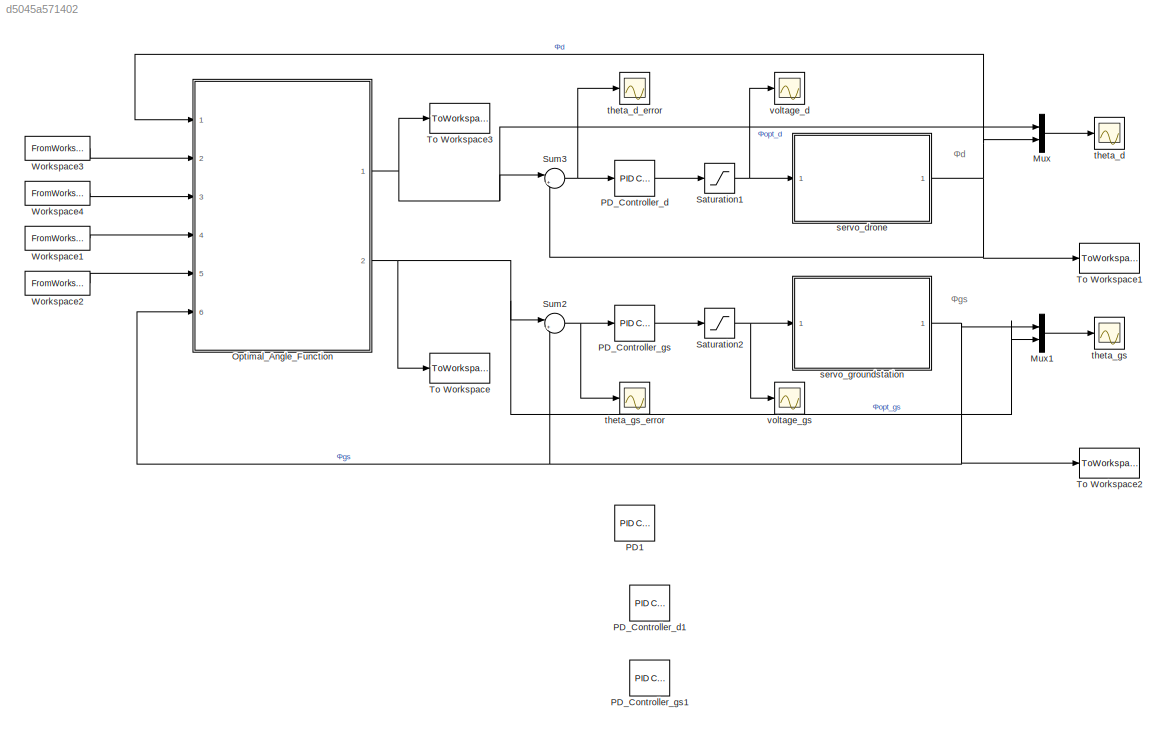
MODEL slx_d5045a571402
KIND model
CONFIG AbsTol = auto
CONFIG FixedStep = auto
CONFIG MaxStep = auto
CONFIG MinStep = auto
CONFIG RelTol = 1e-3
CONFIG SampleTimeConstraint = Unconstrained
CONFIG Solver = VariableStepAuto
CONFIG SolverMode = Auto
CONFIG SolverName = VariableStepAuto
CONFIG StartTime = 0.0
CONFIG StopTime = 100
BLOCK [Mux] Mux
  DisplayOption = bar
  Inputs = 2
  Ports = [2, 1]
BLOCK [Mux] Mux1
  DisplayOption = bar
  Inputs = 2
  Ports = [2, 1]
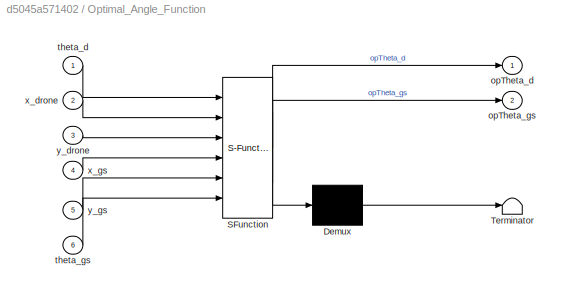
BLOCK [SubSystem] Optimal_Angle_Function 
  ErrorFcn = Stateflow.Translate.translate
  PermitHierarchicalResolution = ExplicitOnly
  Ports = [6, 2]
  RequestExecContextInheritance = off
  SFBlockType = MATLAB Function
  TreatAsAtomicUnit = on
  Variant = off
BLOCK [Demux] Optimal_Angle_Function / Demux 
  Outputs = 1
  Ports = [1, 1]
BLOCK [S-Function] Optimal_Angle_Function / SFunction 
  EnableBusSupport = on
  FunctionName = sf_sfun
  PortCounts = [6 3]
  Ports = [6, 3]
  SFunctionDeploymentMode = off
  Tag = Stateflow S-Function dronesmodel 2
BLOCK [Terminator] Optimal_Angle_Function / Terminator 
BLOCK [Outport] Optimal_Angle_Function /opTheta_d
  IconDisplay = Port number
BLOCK [Outport] Optimal_Angle_Function /opTheta_gs
  IconDisplay = Port number
  Port = 2
BLOCK [Inport] Optimal_Angle_Function /theta_d
  IconDisplay = Port number
BLOCK [Inport] Optimal_Angle_Function /theta_gs
  IconDisplay = Port number
  Port = 6
BLOCK [Inport] Optimal_Angle_Function /x_drone
  IconDisplay = Port number
  Port = 2
BLOCK [Inport] Optimal_Angle_Function /x_gs
  IconDisplay = Port number
  Port = 4
BLOCK [Inport] Optimal_Angle_Function /y_drone
  IconDisplay = Port number
  Port = 3
BLOCK [Inport] Optimal_Angle_Function /y_gs
  IconDisplay = Port number
  Port = 5
BLOCK [Reference] PD1  REF=simulink/Continuous/PID Controller
  Ports = [1, 1]
  SourceBlock = simulink/Continuous/PID Controller
  SourceType = PID 1dof
BLOCK [Reference] PD_Controller_d  REF=simulink/Continuous/PID Controller
  Ports = [1, 1]
  SourceBlock = simulink/Continuous/PID Controller
  SourceType = PID 1dof
BLOCK [Reference] PD_Controller_d1  REF=simulink/Continuous/PID Controller
  Ports = [1, 1]
  SourceBlock = simulink/Continuous/PID Controller
  SourceType = PID 1dof
BLOCK [Reference] PD_Controller_gs  REF=simulink/Continuous/PID Controller
  Ports = [1, 1]
  SourceBlock = simulink/Continuous/PID Controller
  SourceType = PID 1dof
BLOCK [Reference] PD_Controller_gs1  REF=simulink/Continuous/PID Controller
  Ports = [1, 1]
  SourceBlock = simulink/Continuous/PID Controller
  SourceType = PID 1dof
BLOCK [Saturate] Saturation1
  InputPortMap = u0
  LowerLimit = -10
  Ports = [1, 1]
  UpperLimit = 10
BLOCK [Saturate] Saturation2
  InputPortMap = u0
  LowerLimit = -10
  Ports = [1, 1]
  UpperLimit = 10
BLOCK [Sum] Sum2
  IconShape = round
  InputSameDT = off
  Inputs = |+-
  OutDataTypeStr = Inherit: Inherit via internal rule
  Ports = [2, 1]
  SaturateOnIntegerOverflow = off
BLOCK [Sum] Sum3
  IconShape = round
  InputSameDT = off
  Inputs = |+-
  OutDataTypeStr = Inherit: Inherit via internal rule
  Ports = [2, 1]
  SaturateOnIntegerOverflow = off
BLOCK [ToWorkspace] To Workspace
  FixptAsFi = on
  MaxDataPoints = inf
  Ports = [1]
  SampleTime = -1
  Save2DSignal = 3-D array (concatenate along third dimension)
  SaveFormat = Timeseries
  VariableName = op_theta_gs
BLOCK [ToWorkspace] To Workspace1
  FixptAsFi = on
  MaxDataPoints = inf
  Ports = [1]
  SampleTime = -1
  Save2DSignal = 3-D array (concatenate along third dimension)
  SaveFormat = Timeseries
  VariableName = theta_d_vec
BLOCK [ToWorkspace] To Workspace2
  FixptAsFi = on
  MaxDataPoints = inf
  Ports = [1]
  SampleTime = -1
  Save2DSignal = 3-D array (concatenate along third dimension)
  SaveFormat = Timeseries
  VariableName = theta_gs_vec
BLOCK [ToWorkspace] To Workspace3
  FixptAsFi = on
  MaxDataPoints = inf
  Ports = [1]
  SampleTime = -1
  Save2DSignal = 3-D array (concatenate along third dimension)
  SaveFormat = Timeseries
  VariableName = op_theta_d
BLOCK [FromWorkspace] Workspace1
  SampleTime = 1
  VariableName = [time' x_gs']
  ZeroCross = on
BLOCK [FromWorkspace] Workspace2
  SampleTime = 1
  VariableName = [time' y_gs']
  ZeroCross = on
BLOCK [FromWorkspace] Workspace3
  SampleTime = 1
  VariableName = [time' x_drone']
  ZeroCross = on
BLOCK [FromWorkspace] Workspace4
  OutDataTypeStr = double
  SampleTime = 1
  VariableName = [time' y_drone']
  ZeroCross = on
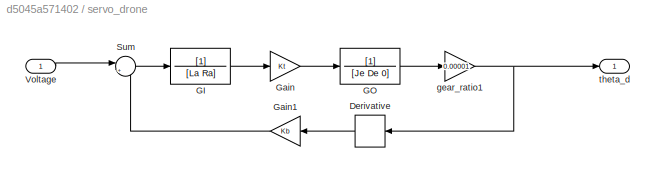
BLOCK [SubSystem] servo_drone
  Ports = [1, 1]
  RequestExecContextInheritance = off
  Variant = off
BLOCK [Derivative] servo_drone/Derivative
BLOCK [TransferFcn] servo_drone/GI
  Denominator = [La Ra]
BLOCK [TransferFcn] servo_drone/GO
  Denominator = [Je De 0]
BLOCK [Gain] servo_drone/Gain
  Gain = Kt
  OutDataTypeStr = Inherit: Inherit via internal rule
  ParamDataTypeStr = Inherit: Inherit via internal rule
  SaturateOnIntegerOverflow = off
BLOCK [Gain] servo_drone/Gain1
  Gain = Kb
  OutDataTypeStr = Inherit: Inherit via internal rule
  ParamDataTypeStr = Inherit: Inherit via internal rule
  SaturateOnIntegerOverflow = off
BLOCK [Sum] servo_drone/Sum
  IconShape = round
  InputSameDT = off
  Inputs = |+-
  OutDataTypeStr = Inherit: Inherit via internal rule
  Ports = [2, 1]
  SaturateOnIntegerOverflow = off
BLOCK [Inport] servo_drone/Voltage
  IconDisplay = Port number
BLOCK [Gain] servo_drone/gear_ratio1 
  Gain = 0.00001
  OutDataTypeStr = Inherit: Inherit via internal rule
  ParamDataTypeStr = Inherit: Inherit via internal rule
  SaturateOnIntegerOverflow = off
BLOCK [Outport] servo_drone/theta_d
  IconDisplay = Port number
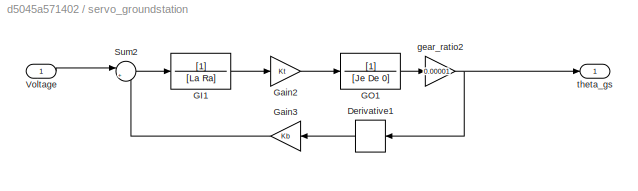
BLOCK [SubSystem] servo_groundstation
  Ports = [1, 1]
  RequestExecContextInheritance = off
  Variant = off
BLOCK [Derivative] servo_groundstation/Derivative1
BLOCK [TransferFcn] servo_groundstation/GI1
  Denominator = [La Ra]
BLOCK [TransferFcn] servo_groundstation/GO1
  Denominator = [Je De 0]
BLOCK [Gain] servo_groundstation/Gain2
  Gain = Kt
  OutDataTypeStr = Inherit: Inherit via internal rule
  ParamDataTypeStr = Inherit: Inherit via internal rule
  SaturateOnIntegerOverflow = off
BLOCK [Gain] servo_groundstation/Gain3
  Gain = Kb
  OutDataTypeStr = Inherit: Inherit via internal rule
  ParamDataTypeStr = Inherit: Inherit via internal rule
  SaturateOnIntegerOverflow = off
BLOCK [Sum] servo_groundstation/Sum2
  IconShape = round
  InputSameDT = off
  Inputs = |+-
  OutDataTypeStr = Inherit: Inherit via internal rule
  Ports = [2, 1]
  SaturateOnIntegerOverflow = off
BLOCK [Inport] servo_groundstation/Voltage
  IconDisplay = Port number
BLOCK [Gain] servo_groundstation/gear_ratio2
  Gain = 0.00001
  OutDataTypeStr = Inherit: Inherit via internal rule
  ParamDataTypeStr = Inherit: Inherit via internal rule
  SaturateOnIntegerOverflow = off
BLOCK [Outport] servo_groundstation/theta_gs
  IconDisplay = Port number
BLOCK [Scope] theta_d
  Ports = [1]
  ScopeSpecificationString = Simulink.scopes.TimeScopeBlockCfg('CurrentConfiguration', extmgr.ConfigurationSet(extmgr.Configuration('Core','General UI',true),extmgr.Configuration('Core','Source UI',true),extmgr.Configuration('Sources','WiredSimulink',true,'DataLoggingVariableName','ScopeData1'),extmgr.Configuration('Visuals','Time Domain',true,'SerializedDisplays',{struct('MinYLimReal','-2.96381','MaxYLimReal','0.32931','YLab...<+1422ch>
BLOCK [Scope] theta_d_error
  Ports = [1]
  ScopeSpecificationString = Simulink.scopes.TimeScopeBlockCfg('CurrentConfiguration', extmgr.ConfigurationSet(extmgr.Configuration('Core','General UI',true),extmgr.Configuration('Core','Source UI',true),extmgr.Configuration('Sources','WiredSimulink',true,'DataLoggingVariableName','ScopeData3'),extmgr.Configuration('Visuals','Time Domain',true,'SerializedDisplays',{struct('MinYLimReal','-1.56695','MaxYLimReal','0.1755','YLabe...<+1459ch>
BLOCK [Scope] theta_gs
  Ports = [1]
  ScopeSpecificationString = Simulink.scopes.TimeScopeBlockCfg('CurrentConfiguration', extmgr.ConfigurationSet(extmgr.Configuration('Core','General UI',true),extmgr.Configuration('Core','Source UI',true),extmgr.Configuration('Sources','WiredSimulink',true),extmgr.Configuration('Visuals','Time Domain',true,'SerializedDisplays',{struct('MinYLimReal','-0.21861','MaxYLimReal','1.9675','YLabelReal','','MinYLimMag','0.00000','MaxYL...<+1401ch>
BLOCK [Scope] theta_gs_error
  Ports = [1]
  ScopeSpecificationString = Simulink.scopes.TimeScopeBlockCfg('CurrentConfiguration', extmgr.ConfigurationSet(extmgr.Configuration('Core','General UI',true),extmgr.Configuration('Core','Source UI',true),extmgr.Configuration('Sources','WiredSimulink',true,'DataLoggingVariableName','ScopeData4'),extmgr.Configuration('Visuals','Time Domain',true,'SerializedDisplays',{struct('MinYLimReal','-0.2309','MaxYLimReal','1.96887','YLabe...<+1461ch>
BLOCK [Scope] voltage_d
  Ports = [1]
  ScopeSpecificationString = Simulink.scopes.TimeScopeBlockCfg('CurrentConfiguration', extmgr.ConfigurationSet(extmgr.Configuration('Core','General UI',true),extmgr.Configuration('Core','Source UI',true),extmgr.Configuration('Sources','WiredSimulink',true,'DataLoggingVariableName','ScopeData2'),extmgr.Configuration('Visuals','Time Domain',true,'SerializedDisplays',{struct('MinYLimReal','-11.49975','MaxYLimReal','3.49771','YLa...<+1474ch>
BLOCK [Scope] voltage_gs
  Ports = [1]
  ScopeSpecificationString = Simulink.scopes.TimeScopeBlockCfg('CurrentConfiguration', extmgr.ConfigurationSet(extmgr.Configuration('Core','General UI',true),extmgr.Configuration('Core','Source UI',true),extmgr.Configuration('Sources','WiredSimulink',true,'DataLoggingVariableName','ScopeData1'),extmgr.Configuration('Visuals','Time Domain',true,'SerializedDisplays',{struct('MinYLimReal','-12.5','MaxYLimReal','12.5','YLabelReal...<+1450ch>
ANNOTATION (root): Φd
ANNOTATION (root): Φgs
LINE Mux1:1 -> theta_gs:1
LINE Mux:1 -> theta_d:1
NET Optimal_Angle_Function :1 -> Mux:1, Sum3:1, To Workspace3:1
NET Optimal_Angle_Function :2 -> Mux1:2, Sum2:1, To Workspace:1
LINE PD_Controller_d:1 -> Saturation1:1
LINE PD_Controller_gs:1 -> Saturation2:1
NET Saturation1:1 -> servo_drone:1, voltage_d:1
NET Saturation2:1 -> servo_groundstation:1, voltage_gs:1
NET Sum2:1 -> PD_Controller_gs:1, theta_gs_error:1
NET Sum3:1 -> PD_Controller_d:1, theta_d_error:1
LINE Workspace1:1 -> Optimal_Angle_Function :4
LINE Workspace2:1 -> Optimal_Angle_Function :5
LINE Workspace3:1 -> Optimal_Angle_Function :2
LINE Workspace4:1 -> Optimal_Angle_Function :3
LINE servo_drone/Derivative:1 -> servo_drone/Gain1:1
LINE servo_drone/GI:1 -> servo_drone/Gain:1
LINE servo_drone/GO:1 -> servo_drone/gear_ratio1 :1
LINE servo_drone/Gain1:1 -> servo_drone/Sum:2
LINE servo_drone/Gain:1 -> servo_drone/GO:1
LINE servo_drone/Sum:1 -> servo_drone/GI:1
LINE servo_drone/Voltage:1 -> servo_drone/Sum:1
NET servo_drone/gear_ratio1 :1 -> servo_drone/Derivative:1, servo_drone/theta_d:1
NET servo_drone:1 -> Mux:2, Optimal_Angle_Function :1, Sum3:2, To Workspace1:1
LINE servo_groundstation/Derivative1:1 -> servo_groundstation/Gain3:1
LINE servo_groundstation/GI1:1 -> servo_groundstation/Gain2:1
LINE servo_groundstation/GO1:1 -> servo_groundstation/gear_ratio2:1
LINE servo_groundstation/Gain2:1 -> servo_groundstation/GO1:1
LINE servo_groundstation/Gain3:1 -> servo_groundstation/Sum2:2
LINE servo_groundstation/Sum2:1 -> servo_groundstation/GI1:1
LINE servo_groundstation/Voltage:1 -> servo_groundstation/Sum2:1
NET servo_groundstation/gear_ratio2:1 -> servo_groundstation/Derivative1:1, servo_groundstation/theta_gs:1
NET servo_groundstation:1 -> Mux1:1, Optimal_Angle_Function :6, Sum2:2, To Workspace2:1
note: NET lines group one-source signal fan-out (src -> all destinations, sorted); 1:1 wires keep LINE
CHART Optimal_Angle_Function  states=1 transitions=1
  STATE_LABEL 'eML_blk_kernel()'
  STATE_LABEL 'SCRIPT:\nfunction [opTheta_d,opTheta_gs] = system_2D_sim(theta_d,x_drone,y_drone,x_gs,y_gs,theta_gs)\n% put here the description of the function\n% put here the description of the function\n% put here the description of the function\n% put here the description of the function\n\n    % Optimal angles\n    if y_drone > y_gs\n        opt_theta_gs = atan2(y_drone-y_gs,x_drone-x_gs);\n        opt_theta_d = pi + ...<+282ch>'
